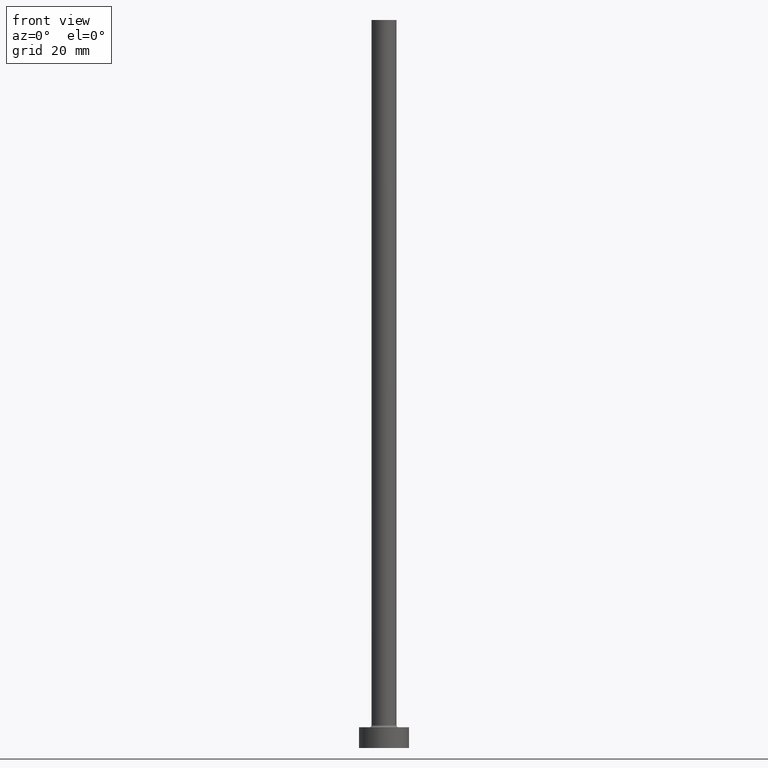
[diagram: clean part render]
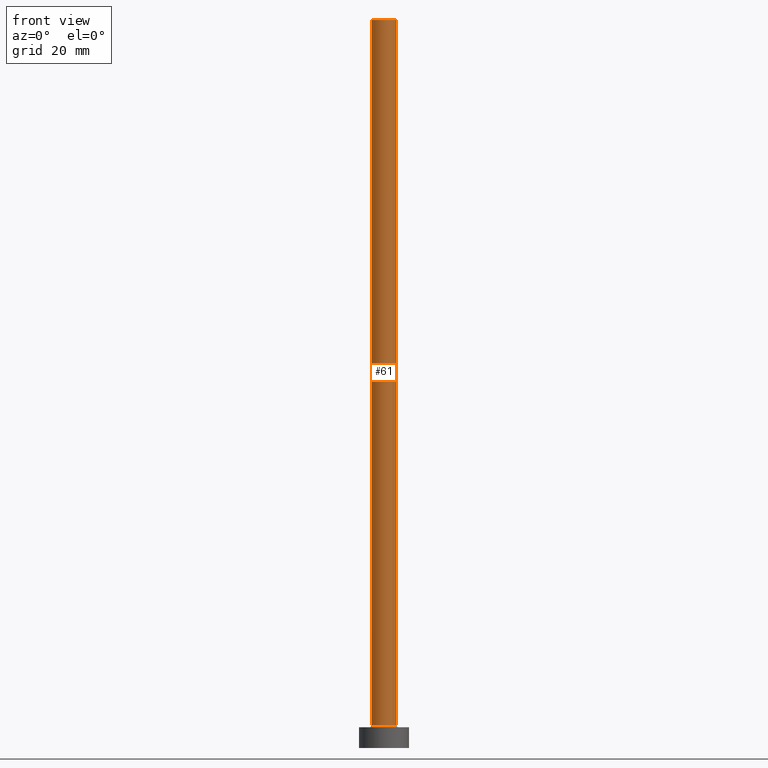
[diagram: same view with one face highlighted and labeled with its STEP entity id]
A machine part, front view. The second image highlights one B-rep face of the part: STEP entity #61.
In plain terms, the highlighted cylindrical surface (edge-blend (fillet) strip) has radius 3 mm, axis along (-0, -0, -1).
Its self-contained STEP definition (entity closure, byte-faithful):
#6 = AXIS2_PLACEMENT_3D ( 'NONE', #154, #264, #132 ) ;
#27 = CARTESIAN_POINT ( 'NONE',  ( 3.000000000000000444, 3.673940397442060361E-16, 5.500000000000005329 ) ) ;
#28 = DIRECTION ( 'NONE',  ( -0.000000000000000000, -0.000000000000000000, -1.000000000000000000 ) ) ;
#57 = AXIS2_PLACEMENT_3D ( 'NONE', #352, #138, #76 ) ;
#59 = LINE ( 'NONE', #452, #266 ) ;
#61 = ADVANCED_FACE ( 'NONE', ( #425 ), #270, .T. ) ;
#69 = CARTESIAN_POINT ( 'NONE',  ( -3.000000000000000444, 0.000000000000000000, 175.0000000000000284 ) ) ;
#76 = DIRECTION ( 'NONE',  ( -1.000000000000000000, 0.000000000000000000, 0.000000000000000000 ) ) ;
#77 = ORIENTED_EDGE ( 'NONE', *, *, #201, .T. ) ;
#93 = VERTEX_POINT ( 'NONE', #69 ) ;
#104 = CARTESIAN_POINT ( 'NONE',  ( 0.000000000000000000, 0.000000000000000000, 175.0000000000000284 ) ) ;
#121 = VECTOR ( 'NONE', #345, 1000.000000000000000 ) ;
#129 = DIRECTION ( 'NONE',  ( 1.000000000000000000, 0.000000000000000000, 0.000000000000000000 ) ) ;
#132 = DIRECTION ( 'NONE',  ( 1.000000000000000000, 0.000000000000000000, 0.000000000000000000 ) ) ;
#138 = DIRECTION ( 'NONE',  ( -0.000000000000000000, -0.000000000000000000, -1.000000000000000000 ) ) ;
#146 = ORIENTED_EDGE ( 'NONE', *, *, #151, .T. ) ;
#151 = EDGE_CURVE ( 'NONE', #93, #347, #194, .T. ) ;
#154 = CARTESIAN_POINT ( 'NONE',  ( 0.000000000000000000, 0.000000000000000000, 5.500000000000005329 ) ) ;
#178 = VERTEX_POINT ( 'NONE', #27 ) ;
#184 = DIRECTION ( 'NONE',  ( 0.000000000000000000, 0.000000000000000000, 1.000000000000000000 ) ) ;
#189 = VERTEX_POINT ( 'NONE', #261 ) ;
#190 = CARTESIAN_POINT ( 'NONE',  ( -3.000000000000000444, 0.000000000000000000, 175.0000000000000284 ) ) ;
#194 = LINE ( 'NONE', #190, #121 ) ;
#201 = EDGE_CURVE ( 'NONE', #347, #178, #331, .T. ) ;
#225 = ORIENTED_EDGE ( 'NONE', *, *, #367, .F. ) ;
#257 = CIRCLE ( 'NONE', #378, 3.000000000000000444 ) ;
#261 = CARTESIAN_POINT ( 'NONE',  ( 3.000000000000000444, 3.673940397442060361E-16, 175.0000000000000284 ) ) ;
#264 = DIRECTION ( 'NONE',  ( 0.000000000000000000, 0.000000000000000000, 1.000000000000000000 ) ) ;
#266 = VECTOR ( 'NONE', #28, 1000.000000000000000 ) ;
#270 = CYLINDRICAL_SURFACE ( 'NONE', #57, 3.000000000000000444 ) ;
#289 = EDGE_LOOP ( 'NONE', ( #450, #225, #146, #77 ) ) ;
#331 = CIRCLE ( 'NONE', #6, 3.000000000000000444 ) ;
#341 = CARTESIAN_POINT ( 'NONE',  ( -3.000000000000000444, 0.000000000000000000, 5.500000000000005329 ) ) ;
#345 = DIRECTION ( 'NONE',  ( -0.000000000000000000, -0.000000000000000000, -1.000000000000000000 ) ) ;
#347 = VERTEX_POINT ( 'NONE', #341 ) ;
#350 = EDGE_CURVE ( 'NONE', #189, #178, #59, .T. ) ;
#352 = CARTESIAN_POINT ( 'NONE',  ( 0.000000000000000000, 0.000000000000000000, 175.0000000000000284 ) ) ;
#367 = EDGE_CURVE ( 'NONE', #93, #189, #257, .T. ) ;
#378 = AXIS2_PLACEMENT_3D ( 'NONE', #104, #184, #129 ) ;
#425 = FACE_OUTER_BOUND ( 'NONE', #289, .T. ) ;
#450 = ORIENTED_EDGE ( 'NONE', *, *, #350, .F. ) ;
#452 = CARTESIAN_POINT ( 'NONE',  ( 3.000000000000000444, 3.673940397442060361E-16, 175.0000000000000284 ) ) ;